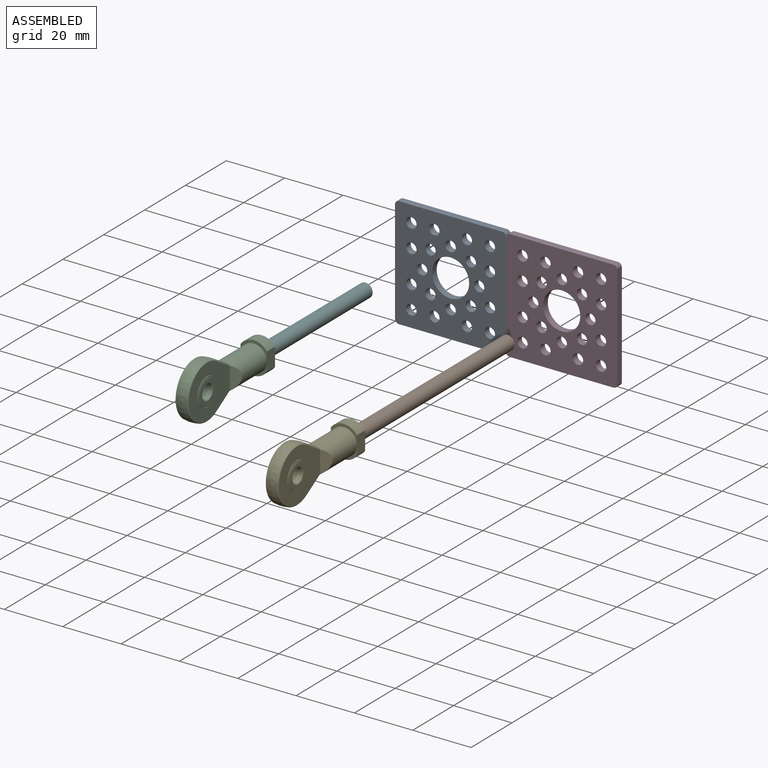
[diagram: assembled view]
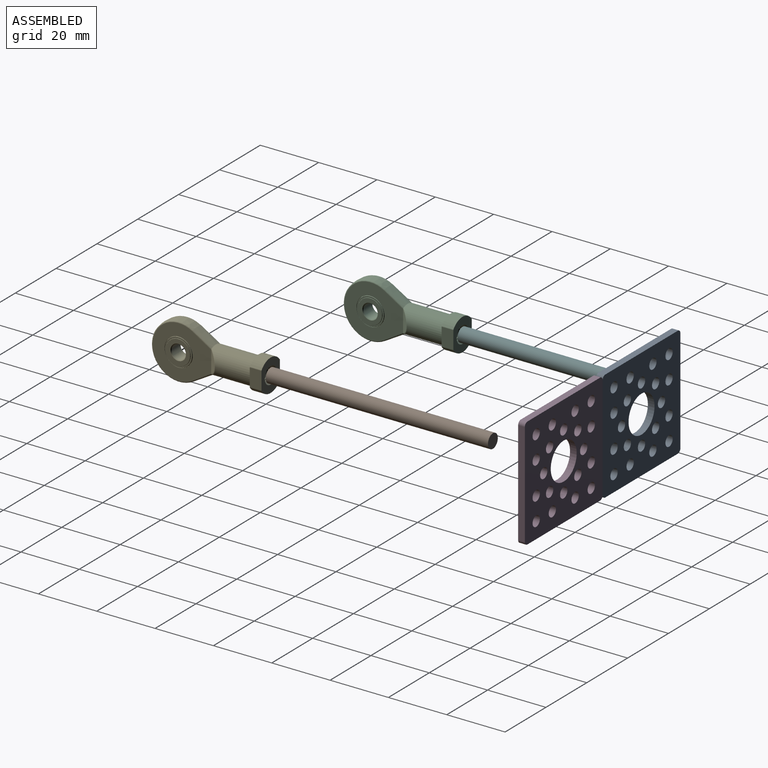
[diagram: assembled view, second angle]
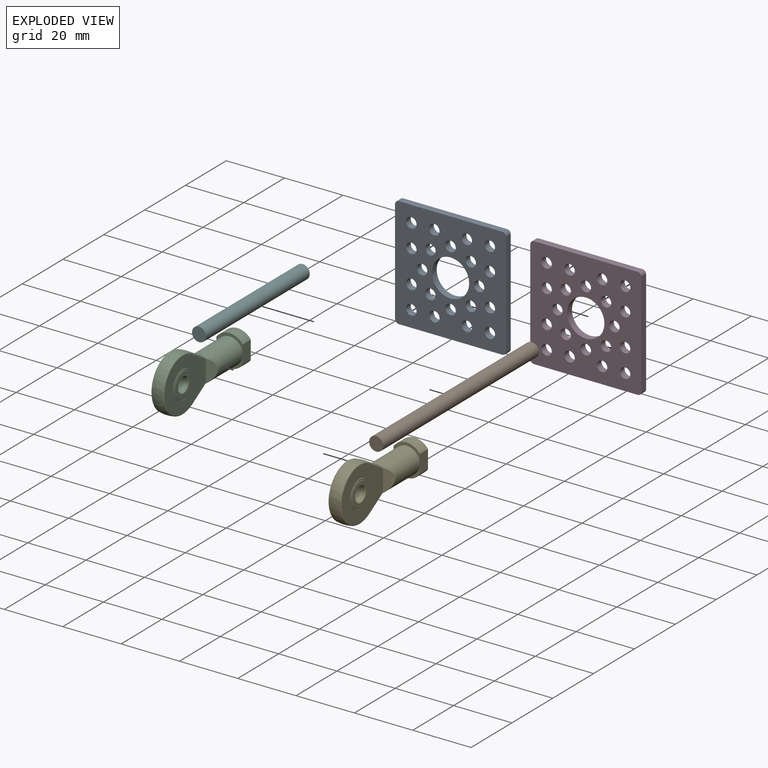
[diagram: exploded view]
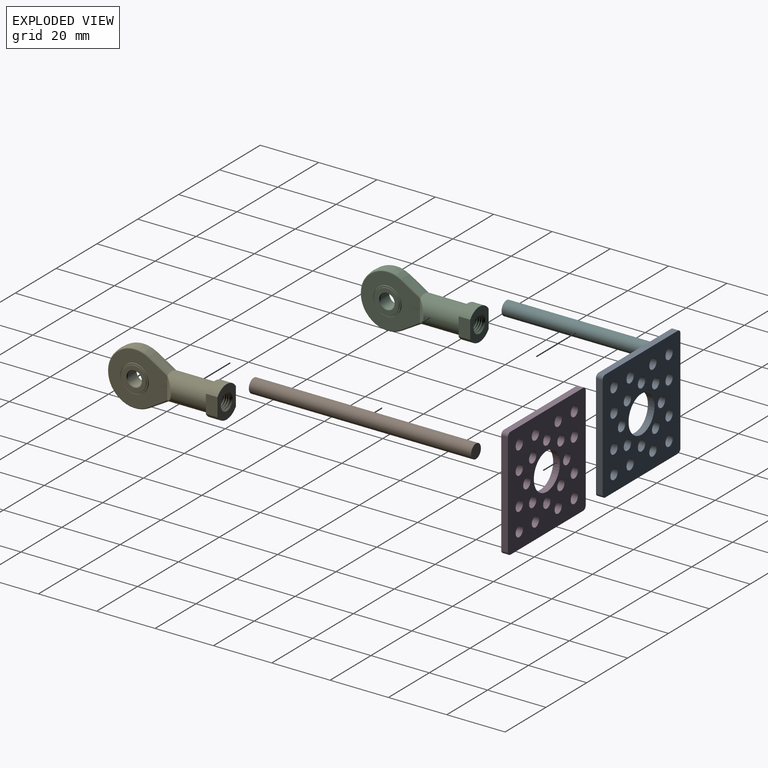
[diagram: exploded view, second angle]
ASSEMBLY  parts=6 mates=3
PART A: 31 faces, bbox 38.1x2.3x38.1 mm
  f0: cylinder r=1.78mm len=3.56mm, axis (0,1,0), area 25.5mm2, adj f21,f22
  f1: cylinder r=1.78mm len=3.56mm, axis (0,1,0), area 25.5mm2, adj f21,f22
  f2: cylinder r=1.78mm len=3.56mm, axis (0,1,0), area 25.5mm2, adj f21,f22
  f3: cylinder r=1.78mm len=3.56mm, axis (0,1,0), area 25.5mm2, adj f21,f22
  f4: cylinder r=1.78mm len=3.56mm, axis (0,1,0), area 25.5mm2, adj f21,f22
  f5: cylinder r=1.78mm len=3.56mm, axis (0,1,0), area 25.5mm2, adj f21,f22
  f6: cylinder r=1.78mm len=3.56mm, axis (0,1,0), area 25.5mm2, adj f21,f22
  f7: cylinder r=1.78mm len=3.56mm, axis (0,1,0), area 25.5mm2, adj f21,f22
  f8: cylinder r=1.78mm len=3.56mm, axis (0,1,0), area 25.5mm2, adj f21,f22
  f9: cylinder r=1.78mm len=3.56mm, axis (0,1,0), area 25.5mm2, adj f21,f22
  f10: cylinder r=1.78mm len=3.56mm, axis (0,1,0), area 25.5mm2, adj f21,f22
  f11: cylinder r=1.78mm len=3.56mm, axis (0,1,0), area 25.5mm2, adj f21,f22
  f12: cylinder r=1.78mm len=3.56mm, axis (0,1,0), area 25.5mm2, adj f21,f22
  f13: cylinder r=1.78mm len=3.56mm, axis (0,1,0), area 25.5mm2, adj f21,f22
  f14: cylinder r=1.78mm len=3.56mm, axis (0,1,0), area 25.5mm2, adj f21,f22
  f15: cylinder r=1.78mm len=3.56mm, axis (0,1,0), area 25.5mm2, adj f21,f22
  f16: cylinder r=1.78mm len=3.56mm, axis (0,1,0), area 25.5mm2, adj f21,f22
  f17: cylinder r=1.78mm len=3.56mm, axis (0,1,0), area 25.5mm2, adj f21,f22
  f18: cylinder r=1.78mm len=3.56mm, axis (0,1,0), area 25.5mm2, adj f21,f22
  f19: cylinder r=1.78mm len=3.56mm, axis (0,1,0), area 25.5mm2, adj f21,f22
  f20: cylinder r=6.36mm len=12.73mm, axis (0,1,0), area 91.4mm2, adj f21,f22
  f21: plane 38.1x38.1mm, normal (0,1,0), area 1124.4mm2, adj f0,f1,f2,f3,f4,f5,f6,f7
  f22: plane 38.1x38.1mm, normal (0,-1,0), area 1124.4mm2, adj f0,f1,f2,f3,f4,f5,f6,f7
  f23: plane 35.56x2.29mm, normal (1,0,0), area 81.3mm2, adj f21,f22,f27,f29
  f24: plane 35.56x2.29mm, normal (0,0,-1), area 81.3mm2, adj f21,f22,f29,f30
  f25: plane 35.56x2.29mm, normal (-1,0,0), area 81.3mm2, adj f21,f22,f28,f30
  f26: plane 35.56x2.29mm, normal (0,0,1), area 81.3mm2, adj f21,f22,f27,f28
  f27: cylinder r=1.27mm len=2.29mm, axis (0,-1,0), area 4.6mm2, adj f21,f22,f23,f26
  f28: cylinder r=1.27mm len=2.29mm, axis (0,-1,0), area 4.6mm2, adj f21,f22,f25,f26
  f29: cylinder r=1.27mm len=2.29mm, axis (0,-1,0), area 4.6mm2, adj f21,f22,f23,f24
  f30: cylinder r=1.27mm len=2.29mm, axis (0,-1,0), area 4.6mm2, adj f21,f22,f24,f25
PART B: 3 faces, bbox 4.8x76.2x4.8 mm
  f0: cylinder r=2.41mm len=76.2mm, axis (0,1,0), area 1155.3mm2, adj f1,f2
  f1: plane 4.83x4.83mm, normal (0,-1,0), area 18.3mm2, adj f0
  f2: plane 4.83x4.83mm, normal (0,1,0), area 18.3mm2, adj f0
PART C: 88 faces, bbox 40.4x19.4x20 mm
  f0: plane 11x9mm, normal (1,0,0), area 60.2mm2, adj f1,f29,f32,f33,f34,f35,f36,f37
  f1: cone r=2.57mm half-angle=45deg, axis (1,0,0), area 10.6mm2, adj f0,f2,f17,f20
  f2: bspline ~5.72x5.67mm, area 18.9mm2, adj f1,f15,f16,f17,f20,f27
  f3: cylinder r=2.24mm len=4.48mm, axis (1,0,0), area 9.4mm2, adj f4,f18,f19,f24,f28
  f4: cylinder r=2.24mm len=4.48mm, axis (1,0,0), area 2.8mm2, adj f3,f5,f19,f24
  f5: cylinder r=2.24mm len=4.48mm, axis (1,0,0), area 2.8mm2, adj f4,f6,f19,f24,f25
  f6: cylinder r=2.24mm len=4.48mm, axis (1,0,0), area 2.8mm2, adj f5,f7,f23,f24,f25
  f7: cylinder r=2.24mm len=4.48mm, axis (1,0,0), area 2.8mm2, adj f6,f8,f23,f25
  f8: cylinder r=2.24mm len=4.48mm, axis (1,0,0), area 2.8mm2, adj f7,f9,f23,f25,f26
  f9: cylinder r=2.24mm len=4.48mm, axis (1,0,0), area 2.8mm2, adj f8,f10,f22,f23,f26
  f10: cylinder r=2.24mm len=4.48mm, axis (1,0,0), area 2.8mm2, adj f9,f11,f22,f26
  f11: cylinder r=2.24mm len=4.48mm, axis (1,0,0), area 2.8mm2, adj f10,f12,f22,f26
  f12: cylinder r=2.24mm len=4.48mm, axis (1,0,0), area 2.8mm2, adj f11,f13,f22,f26,f27
  f13: cylinder r=2.24mm len=4.48mm, axis (1,0,0), area 2.8mm2, adj f12,f14,f21,f22,f27
  f14: cylinder r=2.24mm len=4.48mm, axis (1,0,0), area 2.8mm2, adj f13,f15,f21,f27
  f15: cylinder r=2.24mm len=4.48mm, axis (1,0,0), area 2.8mm2, adj f2,f14,f16,f21,f27
  f16: cylinder r=2.24mm len=4.48mm, axis (1,0,0), area 2.8mm2, adj f2,f15,f17,f20,f21
  f17: cylinder r=2.24mm len=4.48mm, axis (1,0,0), area 1.2mm2, adj f1,f2,f16,f20
  f18: plane 0.6x0.38mm, normal (0,0.67,0.74), area 0.2mm2, adj f3,f19,f24
  f19: bspline ~5.64x5.64mm, area 31.1mm2, adj f3,f4,f5,f18,f24,f25
  f20: bspline ~5.72x5.67mm, area 15.5mm2, adj f1,f2,f16,f17,f21
  f21: bspline ~5.64x5.64mm, area 31.1mm2, adj f13,f14,f15,f16,f20,f22,f27
  f22: bspline ~5.64x5.64mm, area 31.1mm2, adj f9,f10,f11,f12,f13,f21,f23,f26
  f23: bspline ~5.64x5.64mm, area 31.1mm2, adj f6,f7,f8,f9,f22,f24,f25
  f24: bspline ~5.64x5.64mm, area 31.1mm2, adj f3,f4,f5,f6,f18,f19,f23
  f25: bspline ~5.64x5.64mm, area 31.1mm2, adj f5,f6,f7,f8,f19,f23,f26
  f26: bspline ~5.64x5.64mm, area 31.1mm2, adj f8,f9,f10,f11,f12,f22,f25,f27
  f27: bspline ~5.64x5.64mm, area 31.1mm2, adj f2,f12,f13,f14,f15,f21,f26
  f28: plane 4.48x4.48mm, normal (1,0,0), area 15.8mm2, adj f3
  f29: cylinder r=0.37mm len=4mm, axis (-1,0,0), area 0.9mm2, adj f0,f30,f32,f38
  f30: plane 9x5.5mm, normal (-1,0,0), area 11.4mm2, adj f29,f32,f34,f35,f38,f39
  f31: plane 9x5.5mm, normal (-1,0,0), area 11.4mm2, adj f33,f35,f36,f37,f38,f39
  f32: cylinder r=5.5mm len=8.86mm, axis (1,0,0), area 41.2mm2, adj f0,f29,f30,f34
  f33: cylinder r=5.5mm len=8.86mm, axis (1,0,0), area 41.2mm2, adj f0,f31,f36,f37
  f34: cylinder r=0.37mm len=4mm, axis (1,0,0), area 0.9mm2, adj f0,f30,f32,f35
  f35: plane 6.09x4mm, normal (0,-1,0), area 24.4mm2, adj f0,f30,f31,f34,f36
  f36: cylinder r=0.37mm len=4mm, axis (-1,0,0), area 0.9mm2, adj f0,f31,f33,f35
  f37: cylinder r=0.37mm len=4mm, axis (1,0,0), area 0.9mm2, adj f0,f31,f33,f38
  f38: plane 6.09x4mm, normal (0,1,0), area 24.4mm2, adj f0,f29,f30,f31,f37
  f39: cylinder r=4.5mm len=14.71mm, axis (1,0,0), area 384mm2, adj f30,f31,f40,f71,f72,f80,f81,f82
  f40: torus R=4.87mm, axis (1,0,0), area 0.8mm2, adj f39,f41,f43,f80
  f41: cone r=6.39mm half-angle=30deg, axis (-1,0,0), area 28.9mm2, adj f40,f43,f45,f47,f49,f79
  f42: cone r=6.39mm half-angle=30deg, axis (-1,0,0), area 28.9mm2, adj f47,f69,f70,f71,f73
  f43: cylinder r=0.36mm len=0.2mm, axis (0.01,-0.9,0.43), area 0mm2, adj f40,f41,f44,f85
  f44: bspline ~0.46x0.4mm, area 0.1mm2, adj f43,f45,f65,f85
  f45: bspline ~6.81x4.35mm, area 3.6mm2, adj f41,f44,f46,f64
  f46: torus R=8.95mm, axis (0,1,0), area 19.4mm2, adj f45,f47,f64,f69
  f47: sphere r=9.5mm, area 154mm2, adj f41,f42,f46,f48
  f48: torus R=8.95mm, axis (0,1,0), area 19.4mm2, adj f47,f49,f50,f73
  f49: bspline ~6.52x4.17mm, area 3.5mm2, adj f41,f48,f50,f79
  f50: plane 20.06x17.92mm, normal (0,-1,0), area 205.8mm2, adj f48,f49,f51,f73,f75,f76,f77,f79
  f51: cone r=4.78mm half-angle=30deg, axis (0,-1,0), area 2.6mm2, adj f50,f52
  f52: cone r=4.71mm half-angle=30deg, axis (0,1,0), area 5.9mm2, adj f51,f53
  f53: plane 9.33x9.33mm, normal (0,-1,0), area 13.6mm2, adj f52,f54
  f54: sphere r=4.76mm, area 3.5mm2, adj f53,f56
  f55: sphere r=4.76mm, area 3.5mm2, adj f60,f61
  f56: plane 8.21x8.21mm, normal (0,-1,0), area 30.6mm2, adj f54,f57
  f57: cone r=2.55mm half-angle=45deg, axis (0,-1,0), area 5.5mm2, adj f56,f58
  f58: cylinder r=2.43mm len=4.85mm, axis (0,-1,0), area 66.2mm2, adj f57,f59
  f59: cone r=2.55mm half-angle=45deg, axis (0,1,0), area 5.5mm2, adj f58,f60
  f60: plane 8.21x8.21mm, normal (0,1,0), area 30.6mm2, adj f55,f59
  f61: plane 9.33x9.33mm, normal (0,1,0), area 13.6mm2, adj f55,f62
  f62: cone r=4.71mm half-angle=30deg, axis (0,-1,0), area 5.9mm2, adj f61,f63
  f63: cone r=4.78mm half-angle=30deg, axis (0,1,0), area 2.6mm2, adj f62,f64
  f64: plane 20.43x18.31mm, normal (0,1,0), area 205.5mm2, adj f45,f46,f63,f65,f66,f67,f69
  f65: bspline ~0.32x0.21mm, area 0mm2, adj f44,f64,f66,f85
  f66: cylinder r=0.37mm len=7.13mm, axis (0,0,1), area 2.3mm2, adj f64,f65,f67,f86
  f67: bspline ~0.32x0.21mm, area 0mm2, adj f64,f66,f68,f87
  f68: bspline ~0.46x0.4mm, area 0.1mm2, adj f67,f69,f70,f87
  f69: bspline ~6.81x4.35mm, area 3.6mm2, adj f42,f46,f64,f68
  f70: cylinder r=0.36mm len=0.2mm, axis (0.04,0.9,0.44), area 0mm2, adj f42,f68,f71,f87
  f71: torus R=4.87mm, axis (1,0,0), area 0.8mm2, adj f39,f42,f70,f72
  f72: bspline ~0.21x0.1mm, area 0mm2, adj f39,f71,f73,f74
  f73: bspline ~6.82x4.36mm, area 3.6mm2, adj f42,f48,f50,f72,f74
  f74: bspline ~0.42x0.3mm, area 0.1mm2, adj f72,f73,f75,f84
  f75: bspline ~0.27x0.15mm, area 0mm2, adj f50,f74,f76,f84
  f76: cylinder r=0.37mm len=7.22mm, axis (0,0,-1), area 1.8mm2, adj f50,f75,f77,f83
  f77: bspline ~0.27x0.15mm, area 0mm2, adj f50,f76,f78,f81
  f78: bspline ~0.45x0.35mm, area 0.1mm2, adj f77,f79,f80,f81
  f79: bspline ~0.5x0.39mm, area 0.1mm2, adj f41,f49,f50,f78,f80
  f80: bspline ~0.22x0.08mm, area 0mm2, adj f39,f40,f78,f79
  f81: bspline ~4.2x3.26mm, area 1.8mm2, adj f39,f77,f78,f82,f83
  f82: bspline ~3.83x2.57mm, area 1.5mm2, adj f39,f81,f83,f84
  f83: plane 7.23x2.55mm, normal (-0.64,-0.77,0), area 17mm2, adj f76,f81,f82,f84
  f84: bspline ~0.7x0.63mm, area 0.3mm2, adj f39,f74,f75,f82,f83
  f85: bspline ~4.16x2.69mm, area 1.9mm2, adj f39,f43,f44,f65,f86,f87
  f86: plane 7.15x2.07mm, normal (-0.77,0.64,0), area 13.4mm2, adj f66,f85,f87
  f87: bspline ~4.16x2.69mm, area 1.9mm2, adj f39,f67,f68,f70,f85,f86
PART D: same geometry as A
PART E: same geometry as C
PART F: 3 faces, bbox 4.8x50.8x4.8 mm
  f0: cylinder r=2.41mm len=50.8mm, axis (0,1,0), area 770.2mm2, adj f1,f2
  f1: plane 4.83x4.83mm, normal (0,-1,0), area 18.3mm2, adj f0
  f2: plane 4.83x4.83mm, normal (0,1,0), area 18.3mm2, adj f0
PLACE A t=(2.82,-5.55,2.85)mm
PLACE B rot(axis=(0,1,0),90deg) t=(38.81,-29.02,1.38)mm
PLACE C rot(axis=(0,0,1),90deg) t=(-12.84,-105.61,2.18)mm
PLACE D t=(40.92,-5.55,2.85)mm
PLACE E rot(axis=(0,0,1),90deg) t=(38.81,-135.22,1.38)mm
PLACE F rot(axis=(0,1,0),90deg) t=(-12.84,-24.81,2.18)mm
MATE fastened B.f0 <-> E.f1  axis (0,-1,0) through (38.81,-105.22,1.38)mm
MATE fastened C.f1 <-> F.f0  axis (0,1,0) through (-12.84,-75.61,2.18)mm
MATE planar A.f23 <-> D.f25  axis (1,0,0) through (21.87,-4.41,2.85)mm
